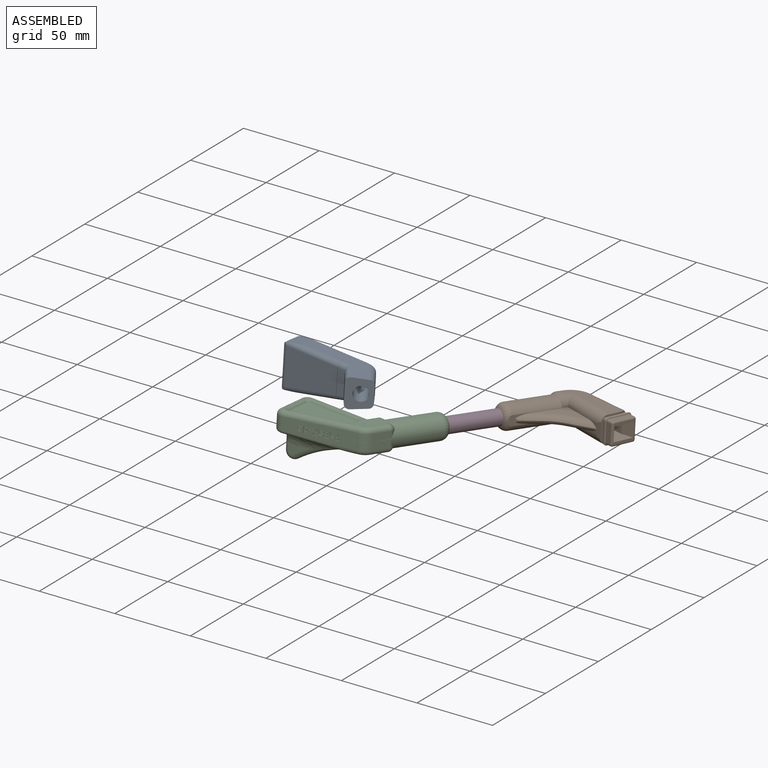
[diagram: assembled view]
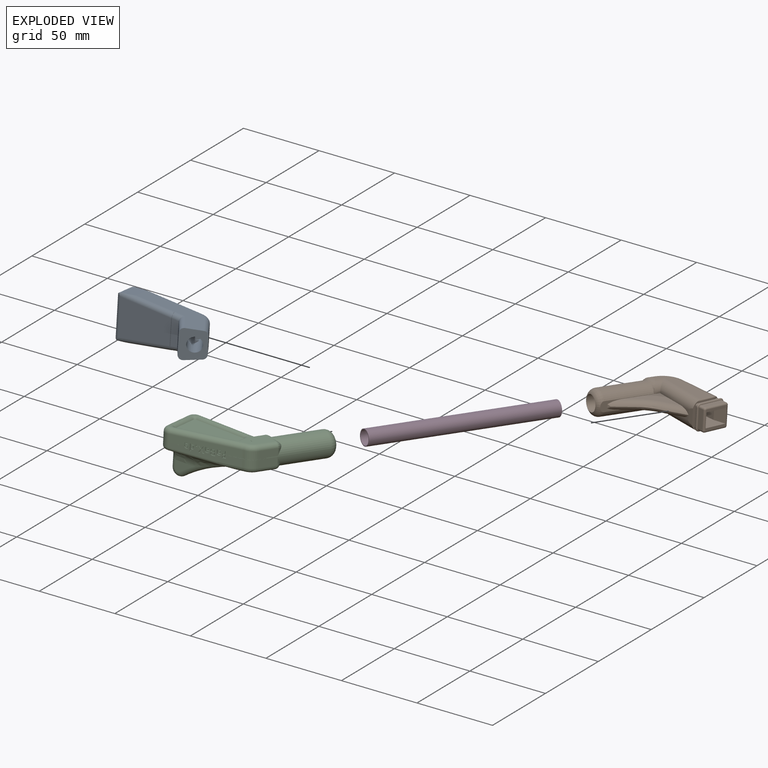
[diagram: exploded view]
GUIDED TOUR — MATED ASSEMBLY WITH SUBASSEMBLIES (Onshape document 0c5960724dca33e63848c3d0, AutoMate assembly 0c5960724dca33e63848c3d0_9888388324c6c3603228b065_faf86990bb4cd9a401d5e894_default)

This assembly has 10 component occurrences arranged in 4 top-level units: 2 individual components plus 2 subassemblies (S0, S1). The tour has two levels: first the top level, where each subassembly is treated as one rigid unit; then each subassembly is toured internally in its own section (nesting deeper than one subassembly level is flattened into its subassembly's section).

Components are labeled P0..P9 across the whole record; subassembly units are labeled S0..S1. A mate is a constraint between two units; its type names the relative motion it leaves free:
  FASTENED — locks the two components together rigidly (no relative motion),
  SLIDER — leaves translation along the listed axis free.
Axis/direction vectors are unit vectors and 'through' points are millimeter coordinates, both in the assembly's world frame.

TOP-LEVEL MATES (between units; each subassembly's internal mates are listed in its own section)
  1. FASTENED "Fest 2": P6 <-> S1, direction (0.438, 0.895, -0.078) through (-85.28, -285.02, -10.18) mm
  2. FASTENED "Fest 1": P4 <-> P6, direction (-0.438, -0.895, 0.078) through (-32.67, -177.57, -19.58) mm

TOP-LEVEL ASSEMBLY ORDER
  1. P6 — the base component [order heuristic]
  2. P4 — core [order heuristic]
  3. S1 — core [order heuristic]
  4. S0 [order verified]
Order-tag legend:
  [order verified] — this step's position reverses a verified removal order: the component was checked to insert without passing through the ones already placed.
  [order heuristic] — the first 3 components form the assembly's core: parts whose collision-free extraction could not be verified, listed in mate-graph order.

Of the 10 component occurrences, 1 carries the full construction recipe — the FeatureScript program that regenerates the part's solid from scratch; the rest are supplied as boundary geometry only. Each toured unit is shown spotlighted twice — assembled, then exploded with a leader line back to its socket (green = recipe-attached component, orange = geometry-only, blue = subassembly unit; the rest desaturated gray).
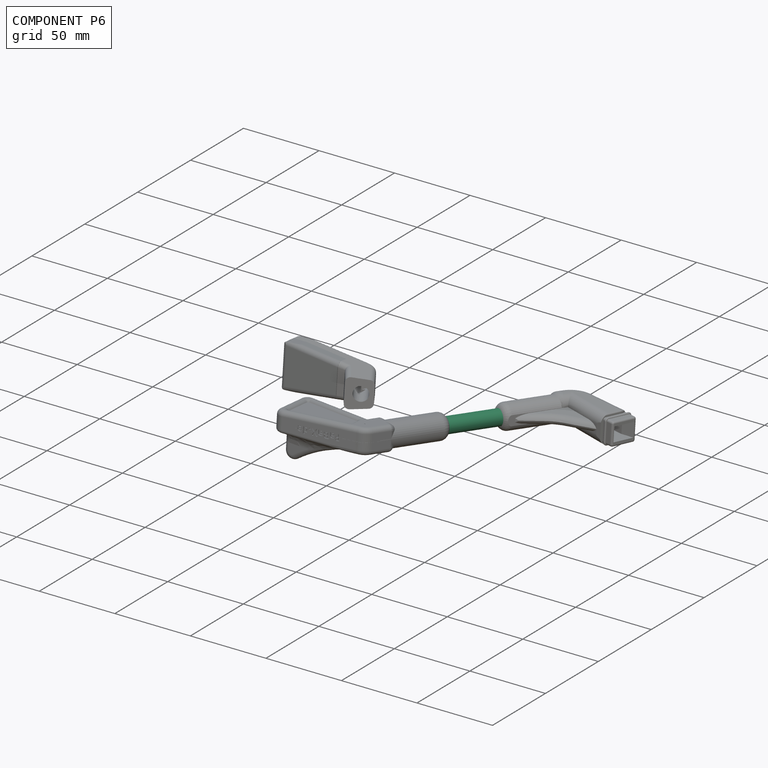
[diagram: component P6 — assembled]
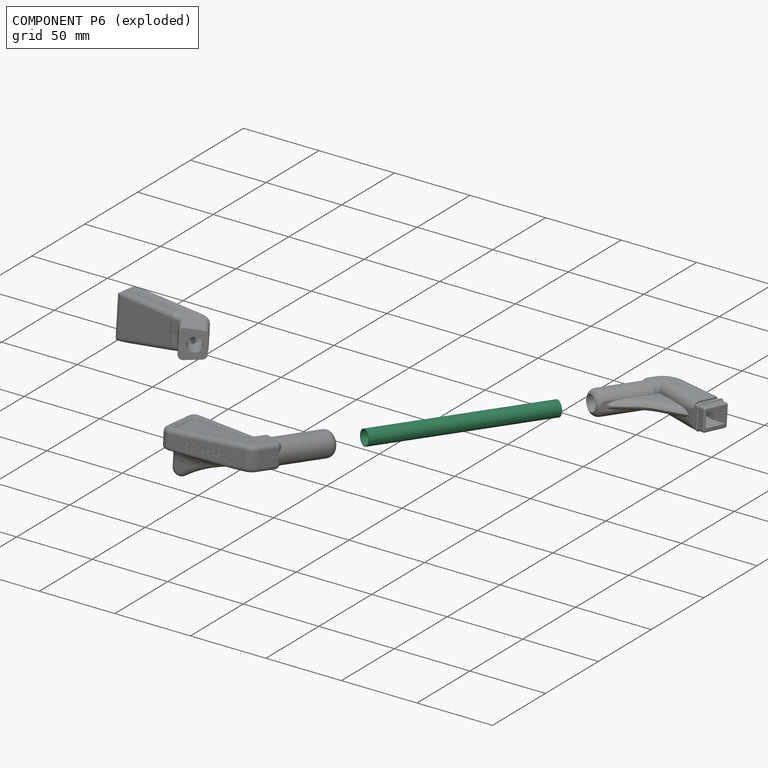
[diagram: component P6 — exploded]
COMPONENT P6 — recipe-attached (CADFS 00316540, mesh-verified: the recipe's output STEP matches this component's geometry to below the mesh-comparison resolution (tessellation chordal tolerance ~0.181 mm)).
Held by: FASTENED mate "Fest 2" to P5; FASTENED mate "Fest 1" to P4.
Construction recipe (FeatureScript — the CAD program that rebuilds this solid; sketch coordinates are in the units given by the * unit suffixes, e.g. mm):

FeatureScript 2599;
import(path : "onshape/std/geometry.fs", version : "2599.0");
import(path : "onshape/std/common.fs", version : "2599.0");
const mm = millimeter;
const VERTEX = EntityType.VERTEX;
const EDGE = EntityType.EDGE;
const FACE = EntityType.FACE;
const BODY = EntityType.BODY;
function v(x, y){return vector(x, y);}
function OD(order){return orderDisambiguation(order);}
function OSD(set){return originalSetDisambiguation(set);}
function TD(topology){return topologyDisambiguation(topology);}
function TDD(query){return trueDependencyDisambiguation(query);}
function sQuery(a, b, c) {return sketchEntityQuery(a, b, c);}

annotation { "Feature Type Name" : "Feature", "Feature Type Description" : "" }
export const myFeature = defineFeature(function(context is Context, id is Id, definition is map)
    precondition{}
    {
        {
            var Q0;
            Q0=qCreatedBy(makeId("Front.planeOp"),FACE);
            var sketch = newSketch(context, id + "F0", { "sketchPlane" : qUnion([Q0])});
            skCircle(sketch, "E0", {"center": v(0, 0) * mm, "radius": 5 * mm});
            skCircle(sketch, "E1", {"center": v(0, 0) * mm, "radius": 4.5 * mm});
            skSolve(sketch);
        }
        {
            var Q0;
            Q0=makeQuery(id+"F0.imprint","IMPRINT",FACE,{"disambiguationData":[TD([[makeQuery(id+"F0.imprint","IMPRINT",EDGE,{"derivedFrom":sQuery(id+"F0.wireOp",EDGE,"E0")}),1.0]])]});
            extrude(context, id + "F1", {"entities" : qUnion([Q0]), "flatOperationType" : FlatOperationType.REMOVE, "offsetDistance" : 25 * mm, "depth" : 120 * mm, "domain" : OperationDomain.MODEL});
        }
    });
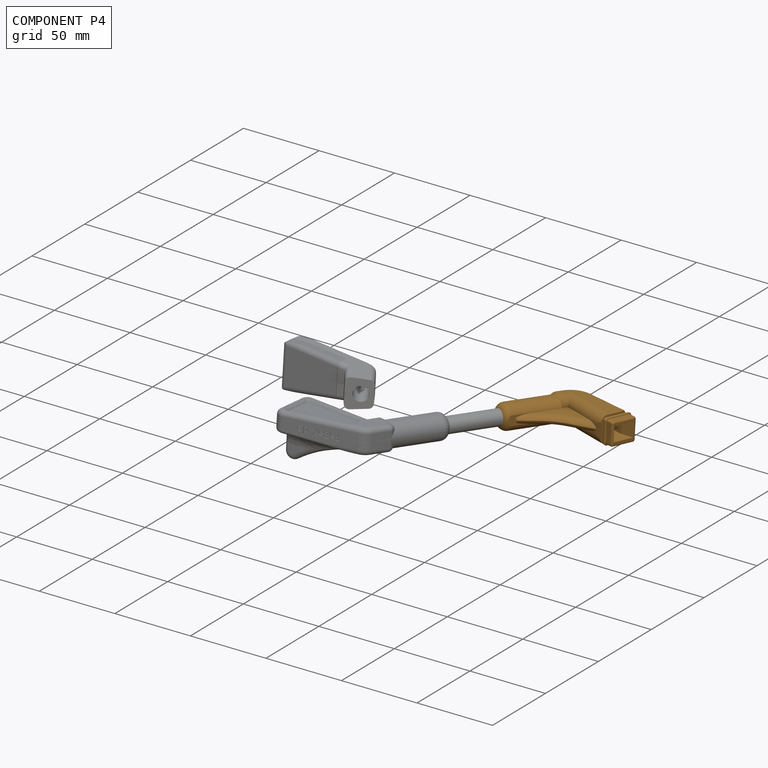
[diagram: component P4 — assembled]
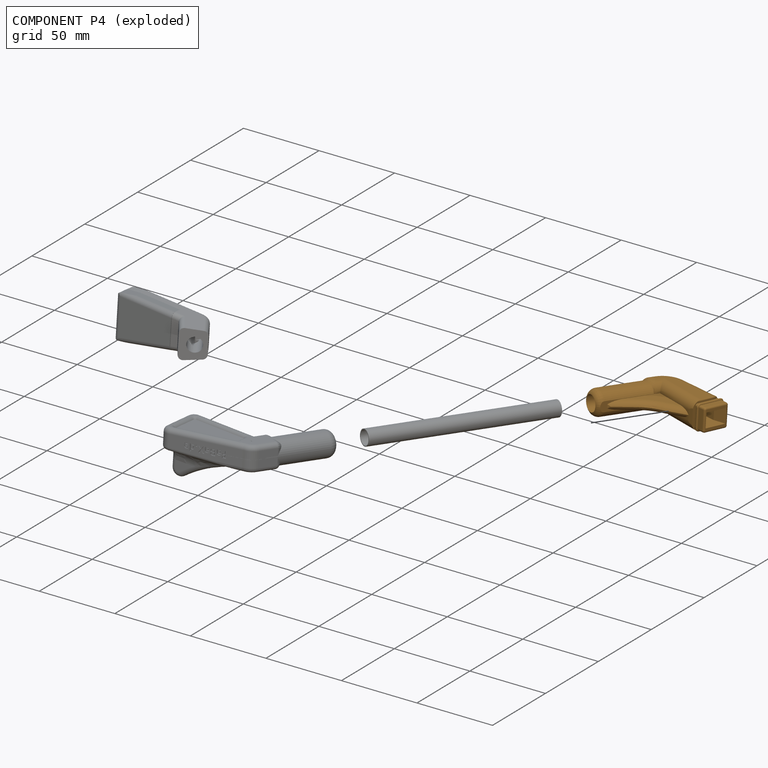
[diagram: component P4 — exploded]
COMPONENT P4 — geometry summary (no construction recipe available for this part):
  bounding box: 60.9 x 56.4 x 18.1 mm
  B-rep topology: 1 solid, 88 faces, 443 edges
  volume: 17948 mm^3 (29% of its bounding box)
  symmetry: mirror-symmetric across its z mid-plane
Held by: FASTENED mate "Fest 1" to P6.
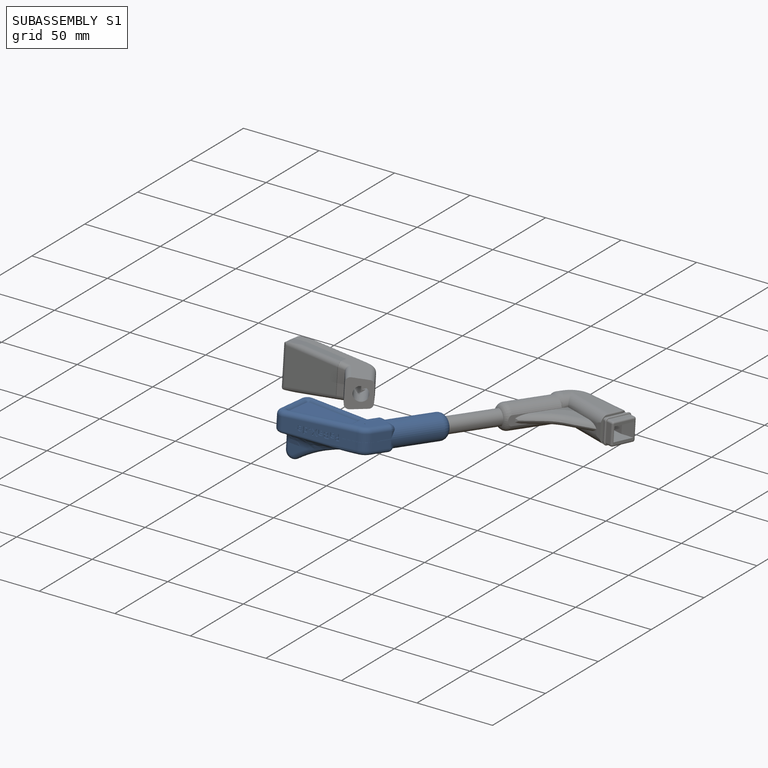
[diagram: subassembly S1 — assembled]
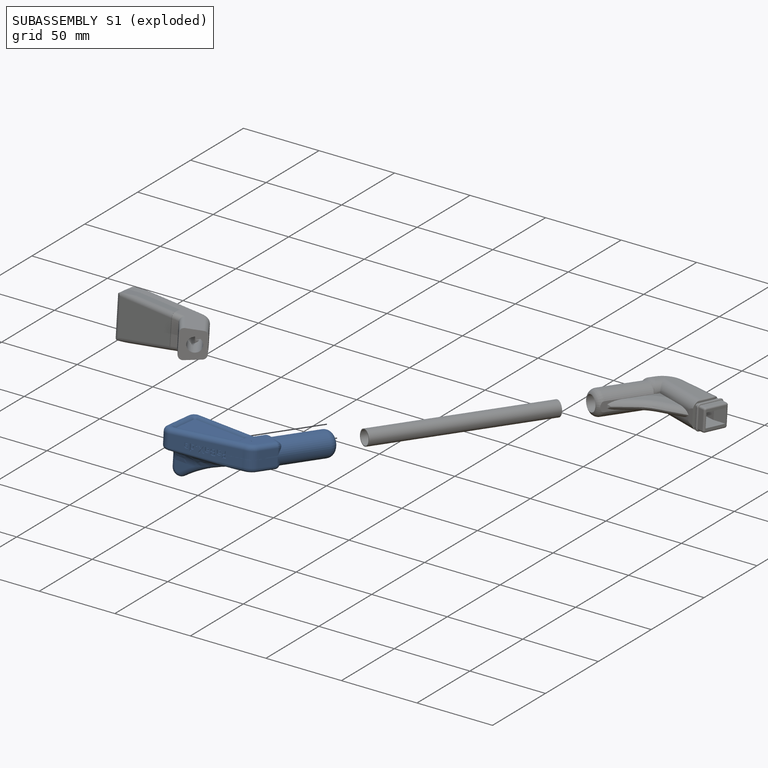
[diagram: subassembly S1 — exploded]
SUBASSEMBLY S1 — 2 components (P5, P9), of which 0 recipe-attached; toured below.
Held by: FASTENED mate "Fest 2" to P6.
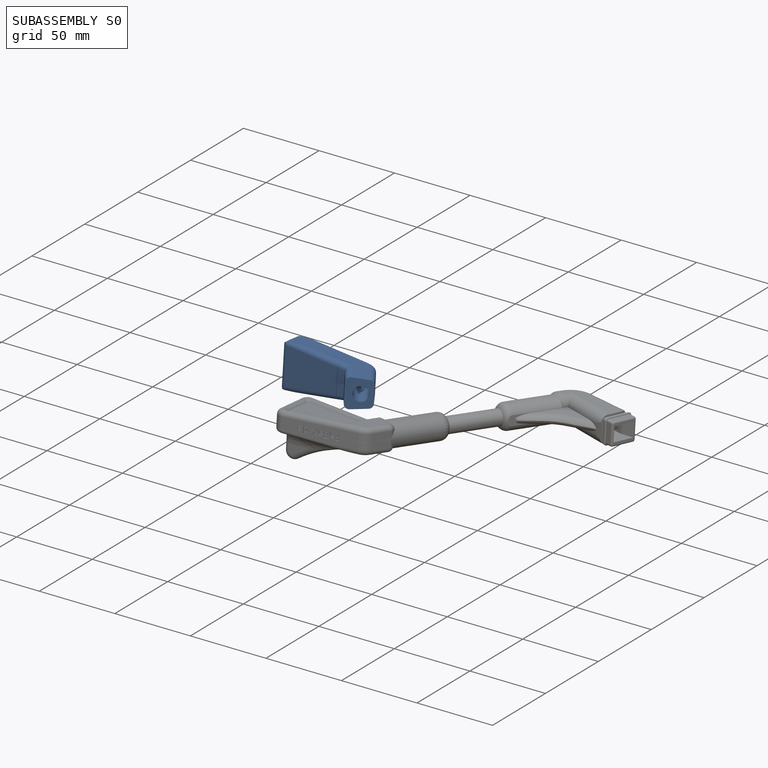
[diagram: subassembly S0 — assembled]
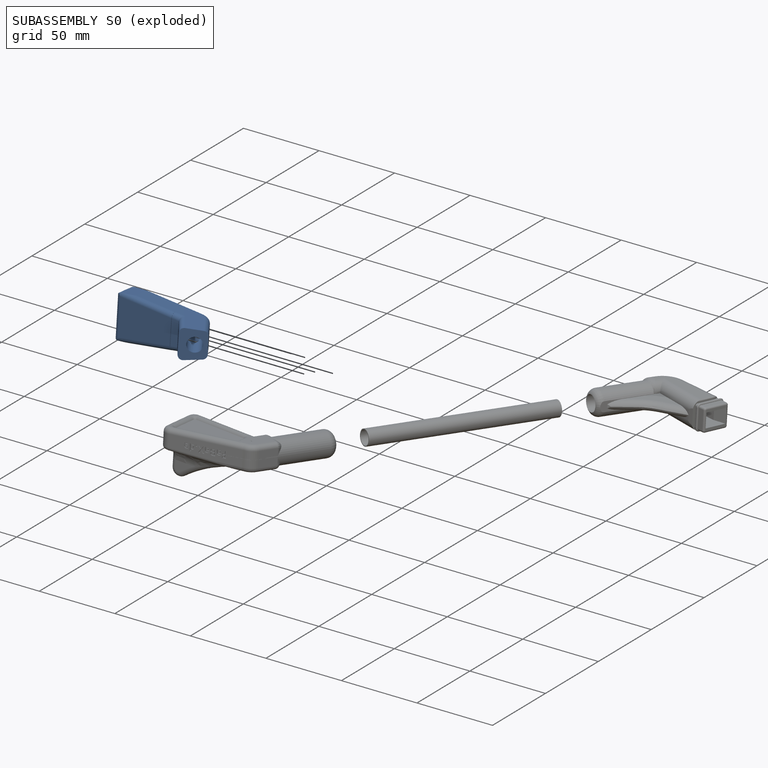
[diagram: subassembly S0 — exploded]
SUBASSEMBLY S0 — 6 components (P0, P1, P2, P3, P7, P8), of which 0 recipe-attached; toured below.
Held by: no mates (free).
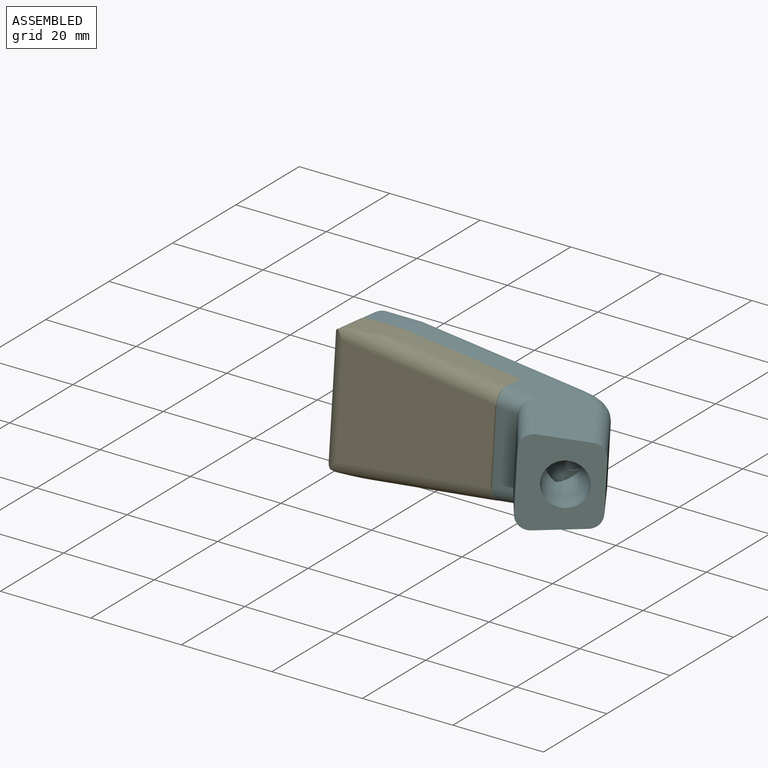
[diagram: subassembly S0 — assembled view]
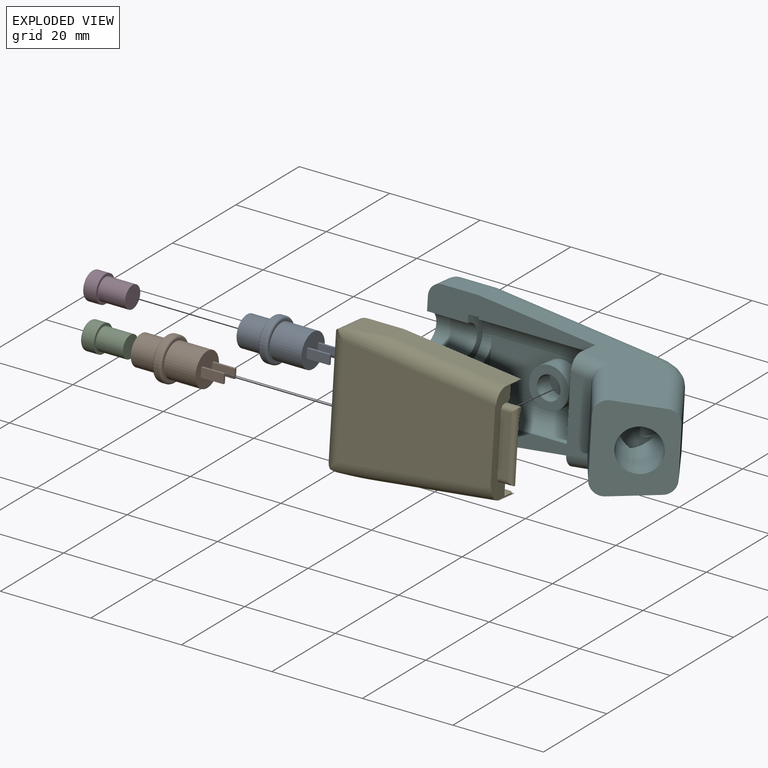
[diagram: subassembly S0 — exploded view]
SUBASSEMBLY S0 TOUR — 6 components, shown here in isolation at its own camera.

INTERNAL MATES
  1. FASTENED "Fest 3": P7 <-> P8, direction (0.000, 0.996, -0.092) through (-112.62, -284.09, 8.49) mm
  2. SLIDER "Gleiter 1": P1 <-> P2, axis (-1.000, 0.000, 0.000) through (-133.19, -283.38, 16.19) mm
  3. FASTENED "Fest 2": P1 <-> P7, direction (-1.000, 0.000, 0.000) through (-127.59, -283.38, 16.19) mm
  4. SLIDER "Gleiter 1": P0 <-> P3, axis (-1.000, 0.000, 0.000) through (-133.19, -282.50, 25.75) mm
  5. FASTENED "Fest 1": P0 <-> P7, direction (-1.000, 0.000, 0.000) through (-127.59, -282.50, 25.75) mm
  6. FASTENED "Fest 3": P7 <-> P8, direction (0.000, 0.996, -0.092) through (-112.62, -284.09, 8.49) mm
  7. FASTENED "Fest 1": P0 <-> P7, direction (-1.000, 0.000, 0.000) through (-127.59, -282.50, 25.75) mm
  8. FASTENED "Fest 2": P1 <-> P7, direction (-1.000, 0.000, 0.000) through (-127.59, -283.38, 16.19) mm
  9. SLIDER "Gleiter 1": P1 <-> P2, axis (-1.000, 0.000, 0.000) through (-133.19, -283.38, 16.19) mm
  10. SLIDER "Gleiter 1": P0 <-> P3, axis (-1.000, 0.000, 0.000) through (-133.19, -282.50, 25.75) mm

ASSEMBLY ORDER (within the subassembly)
  1. P7 — the base component [order heuristic]
  2. P0 [order heuristic]
  3. P1 [order heuristic]
  4. P8 [order heuristic]
  5. P2 [order heuristic]
  6. P3 [order heuristic]
Order-tag legend:
  [order heuristic] — this assembly is geometrically interlocked (no collision-free removal order exists), so components are listed in mate-graph order; insertion feasibility is not verified.
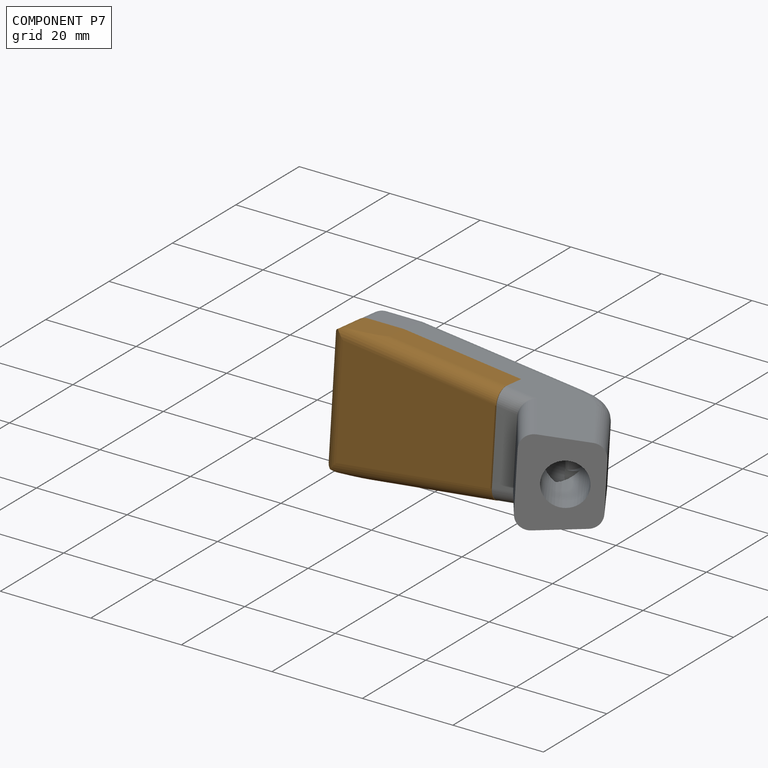
[diagram: component P7 — assembled]
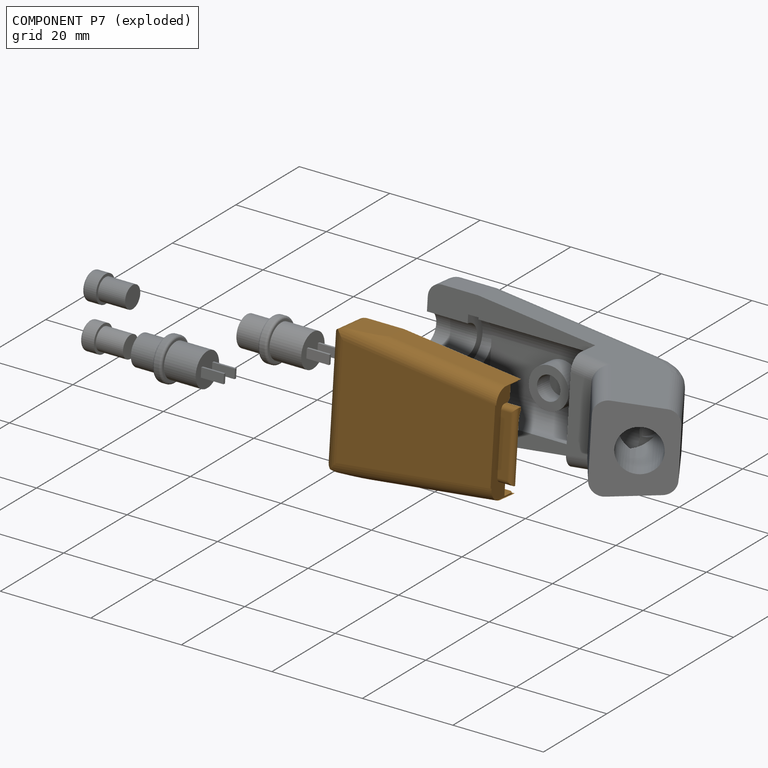
[diagram: component P7 — exploded]
COMPONENT P7 — geometry summary (no construction recipe available for this part):
  bounding box: 40.1 x 30.1 x 7.6 mm
  B-rep topology: 1 solid, 49 faces, 268 edges
  volume: 4540 mm^3 (49% of its bounding box)
Held by: FASTENED mate "Fest 3" to P8; FASTENED mate "Fest 2" to P1; FASTENED mate "Fest 1" to P0; FASTENED mate "Fest 3" to P8; FASTENED mate "Fest 1" to P0; FASTENED mate "Fest 2" to P1.
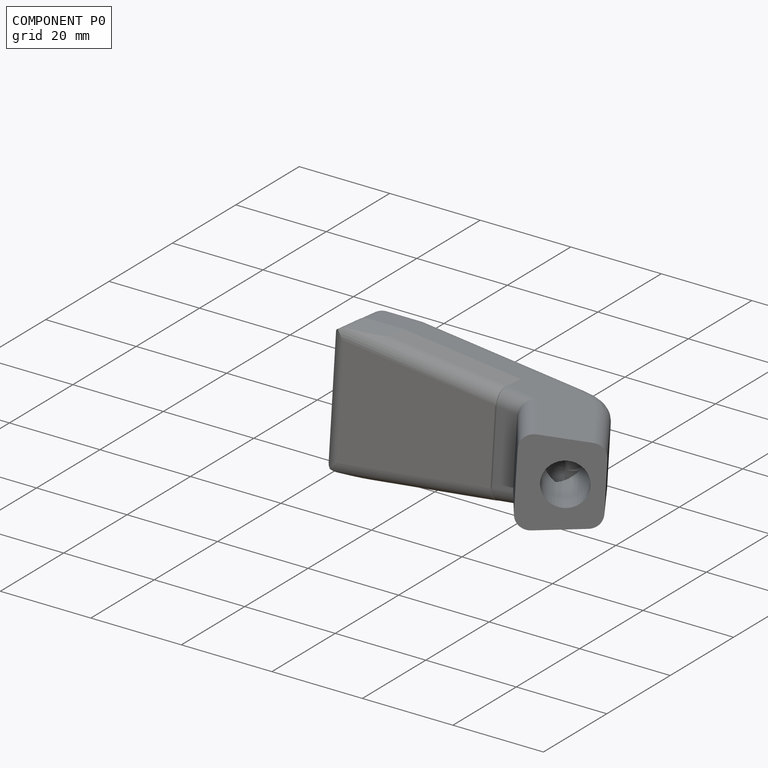
[diagram: component P0 — assembled]
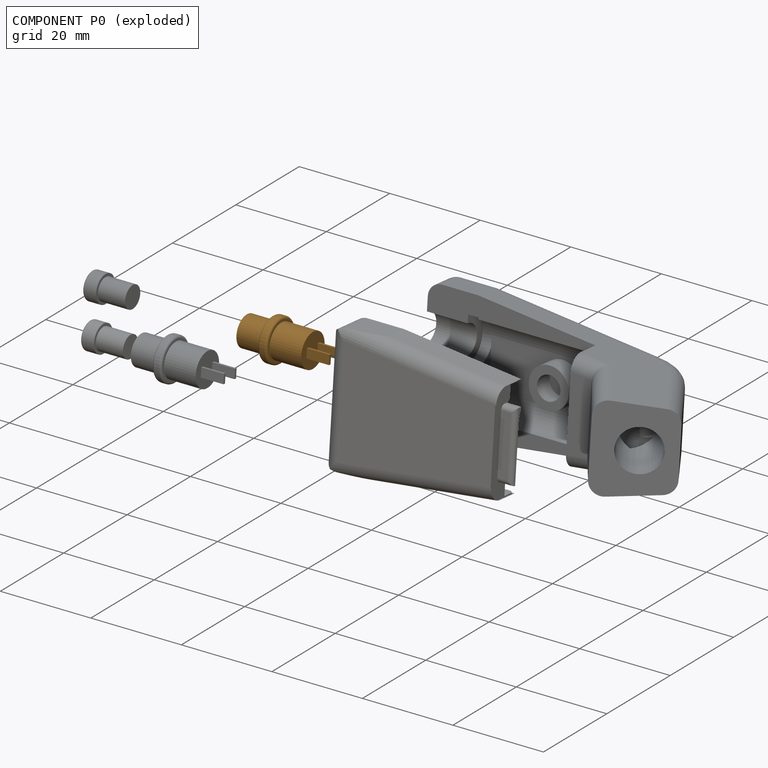
[diagram: component P0 — exploded]
COMPONENT P0 — geometry summary (no construction recipe available for this part):
  bounding box: 19.6 x 10.1 x 10.1 mm
  B-rep topology: 1 solid, 21 faces, 80 edges
  volume: 498 mm^3 (25% of its bounding box)
  symmetry: 2-fold rotationally symmetric about the y axis; mirror-symmetric across its x mid-plane, z mid-plane
Held by: SLIDER mate "Gleiter 1" to P3; FASTENED mate "Fest 1" to P7; FASTENED mate "Fest 1" to P7; SLIDER mate "Gleiter 1" to P3.
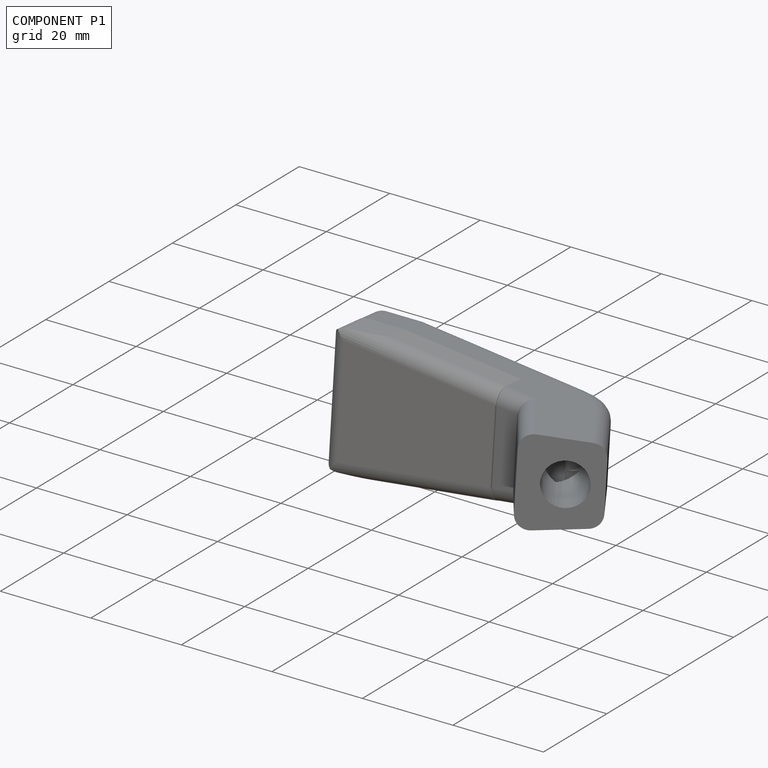
[diagram: component P1 — assembled]
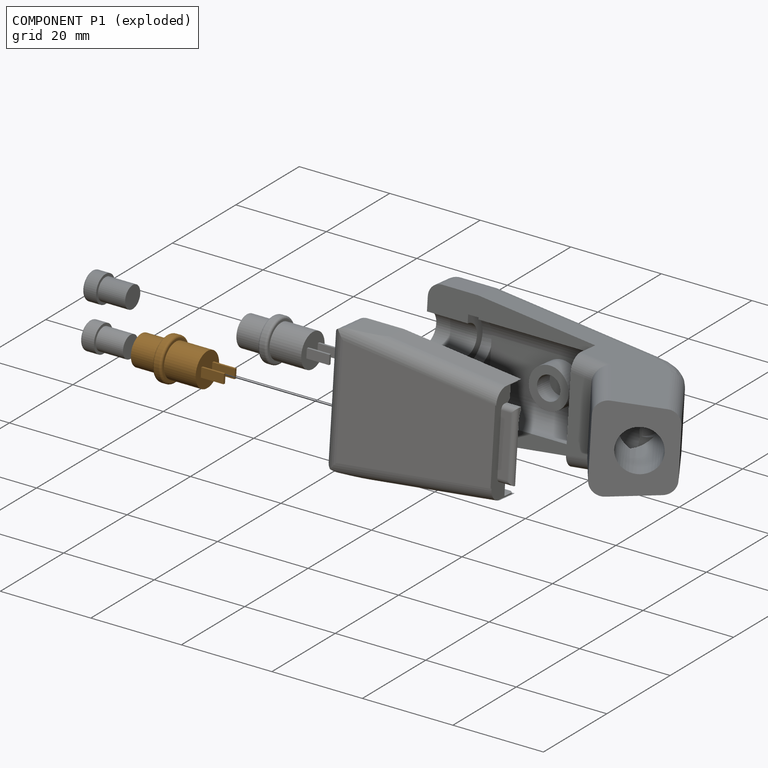
[diagram: component P1 — exploded]
COMPONENT P1 — geometry summary (no construction recipe available for this part):
  bounding box: 19.6 x 10.1 x 10.1 mm
  B-rep topology: 1 solid, 21 faces, 80 edges
  volume: 498 mm^3 (25% of its bounding box)
  symmetry: 2-fold rotationally symmetric about the y axis; mirror-symmetric across its x mid-plane, z mid-plane
Held by: SLIDER mate "Gleiter 1" to P2; FASTENED mate "Fest 2" to P7; FASTENED mate "Fest 2" to P7; SLIDER mate "Gleiter 1" to P2.
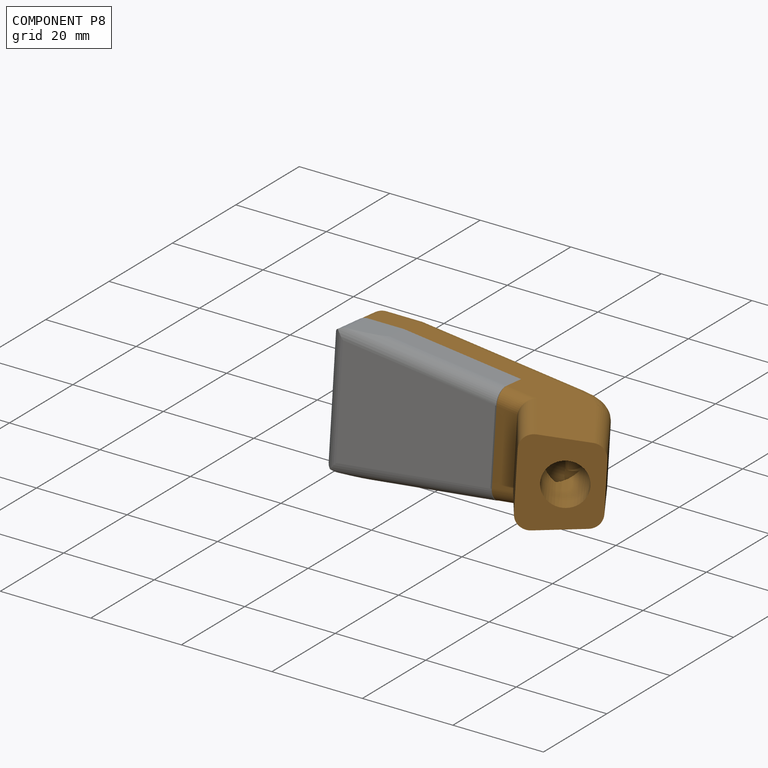
[diagram: component P8 — assembled]
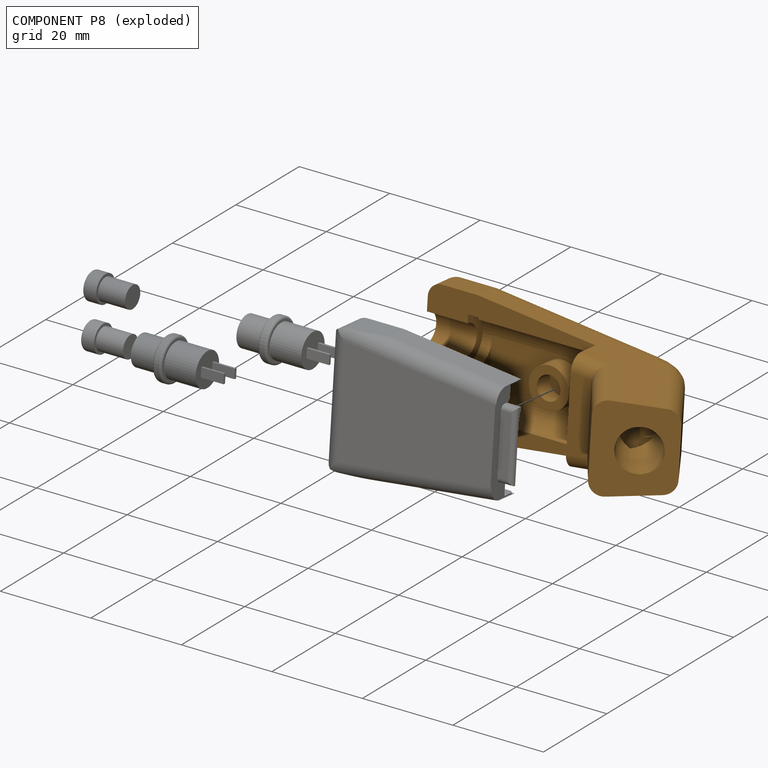
[diagram: component P8 — exploded]
COMPONENT P8 — geometry summary (no construction recipe available for this part):
  bounding box: 63.8 x 28.1 x 27.0 mm
  B-rep topology: 1 solid, 60 faces, 316 edges
  volume: 10294 mm^3 (21% of its bounding box)
Held by: FASTENED mate "Fest 3" to P7; FASTENED mate "Fest 3" to P7.
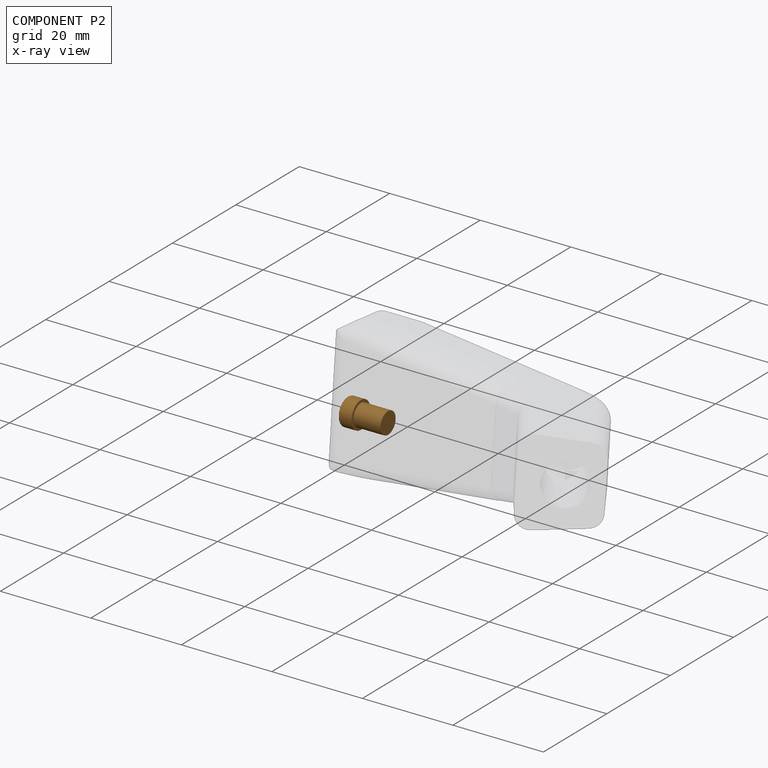
[diagram: component P2 — x-ray view]
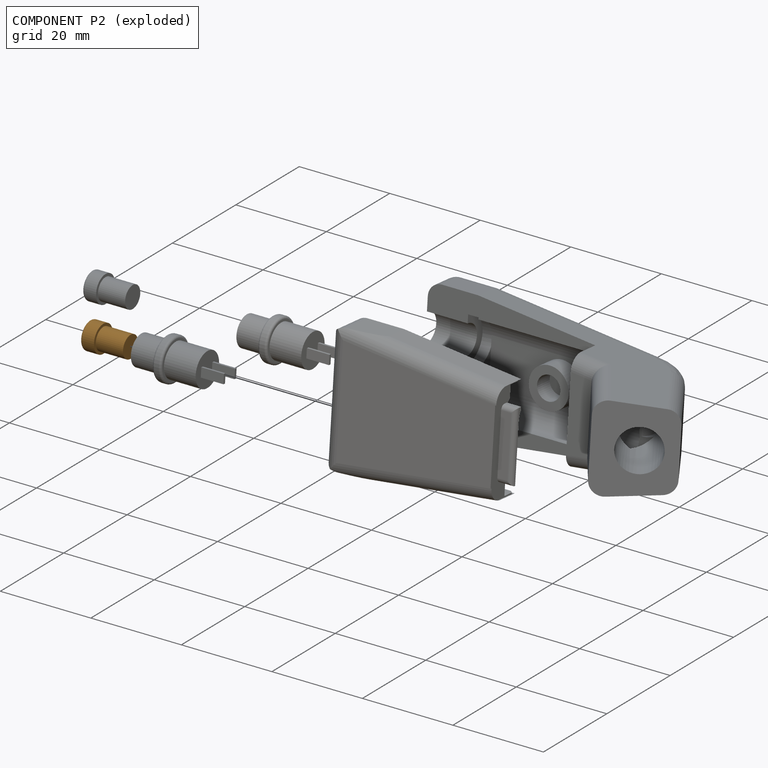
[diagram: component P2 — exploded]
COMPONENT P2 — geometry summary (no construction recipe available for this part):
  bounding box: 9.0 x 6.5 x 6.5 mm
  B-rep topology: 1 solid, 6 faces, 16 edges
  volume: 193 mm^3 (51% of its bounding box)
  symmetry: revolution-symmetric about the y axis through its bounding-box center; mirror-symmetric across its x mid-plane, z mid-plane
Held by: SLIDER mate "Gleiter 1" to P1; SLIDER mate "Gleiter 1" to P1.
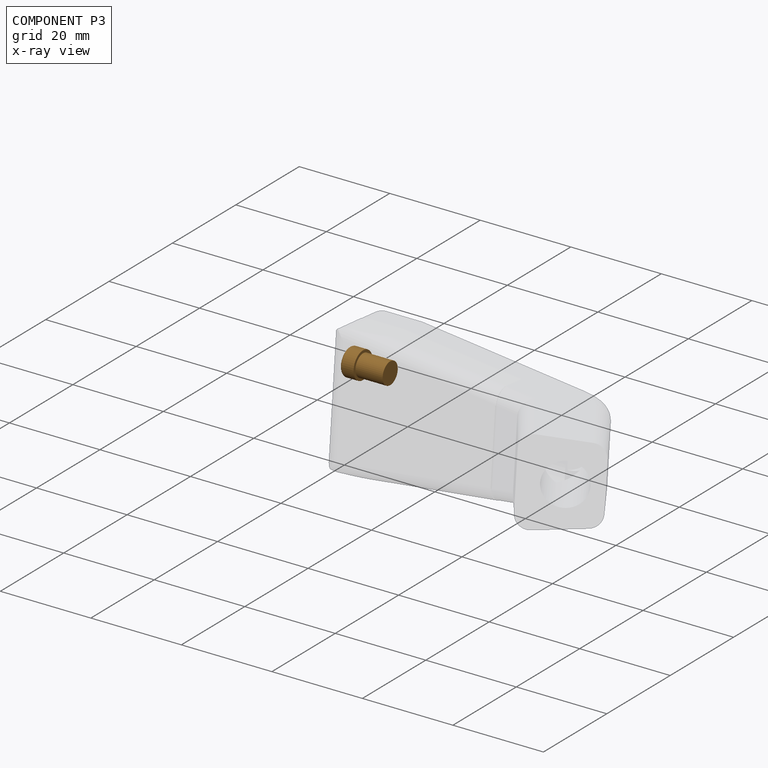
[diagram: component P3 — x-ray view]
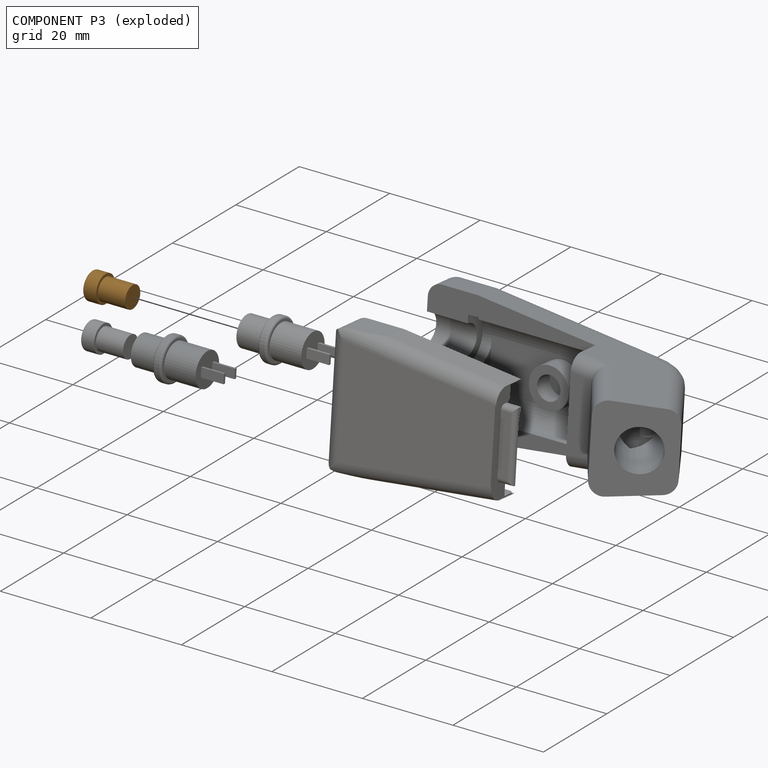
[diagram: component P3 — exploded]
COMPONENT P3 — geometry summary (no construction recipe available for this part):
  bounding box: 9.0 x 6.5 x 6.5 mm
  B-rep topology: 1 solid, 6 faces, 16 edges
  volume: 193 mm^3 (51% of its bounding box)
  symmetry: revolution-symmetric about the y axis through its bounding-box center; mirror-symmetric across its x mid-plane, z mid-plane
Held by: SLIDER mate "Gleiter 1" to P0; SLIDER mate "Gleiter 1" to P0.
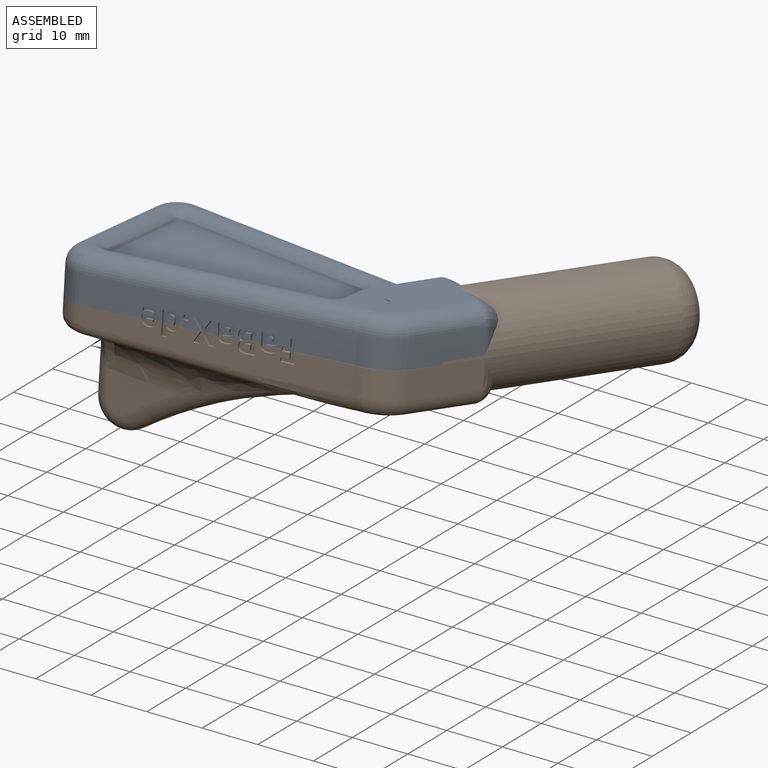
[diagram: subassembly S1 — assembled view]
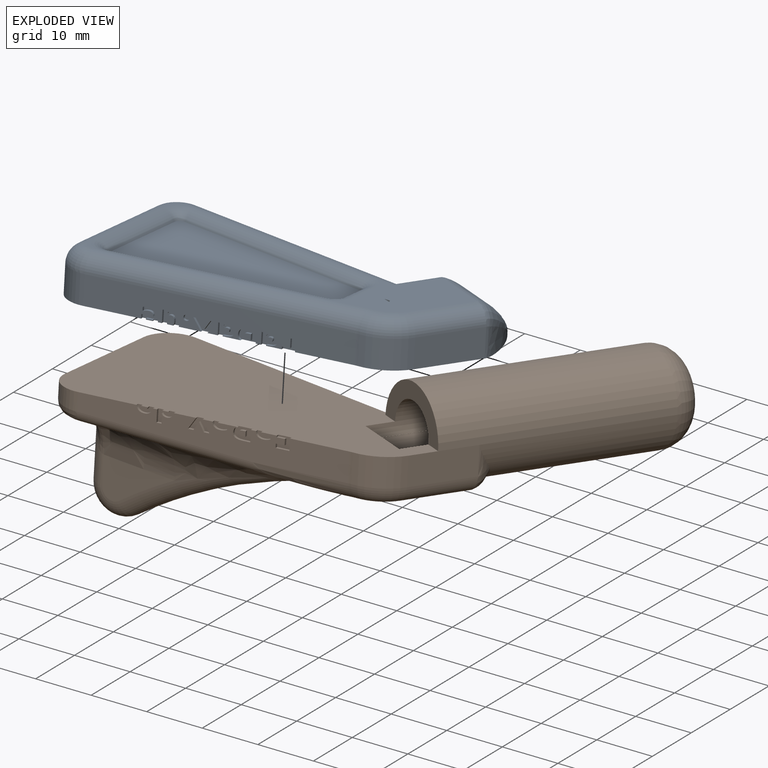
[diagram: subassembly S1 — exploded view]
SUBASSEMBLY S1 TOUR — 2 components, shown here in isolation at its own camera.

INTERNAL MATES
  1. FASTENED "Fest 1": P9 <-> P5, direction (0.000, 0.087, 0.996) through (-135.28, -284.97, -10.18) mm
  2. FASTENED "Fest 1": P9 <-> P5, direction (0.000, 0.087, 0.996) through (-135.28, -284.97, -10.18) mm

ASSEMBLY ORDER (within the subassembly)
  1. P5 — the base component [order heuristic]
  2. P9 [order heuristic]
Order-tag legend:
  [order heuristic] — this assembly is geometrically interlocked (no collision-free removal order exists), so components are listed in mate-graph order; insertion feasibility is not verified.
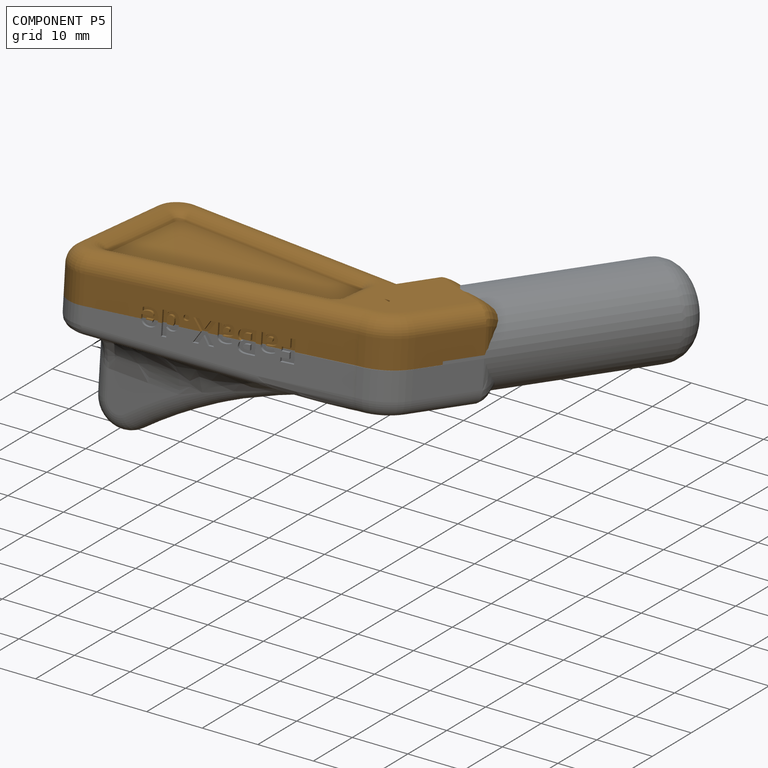
[diagram: component P5 — assembled]
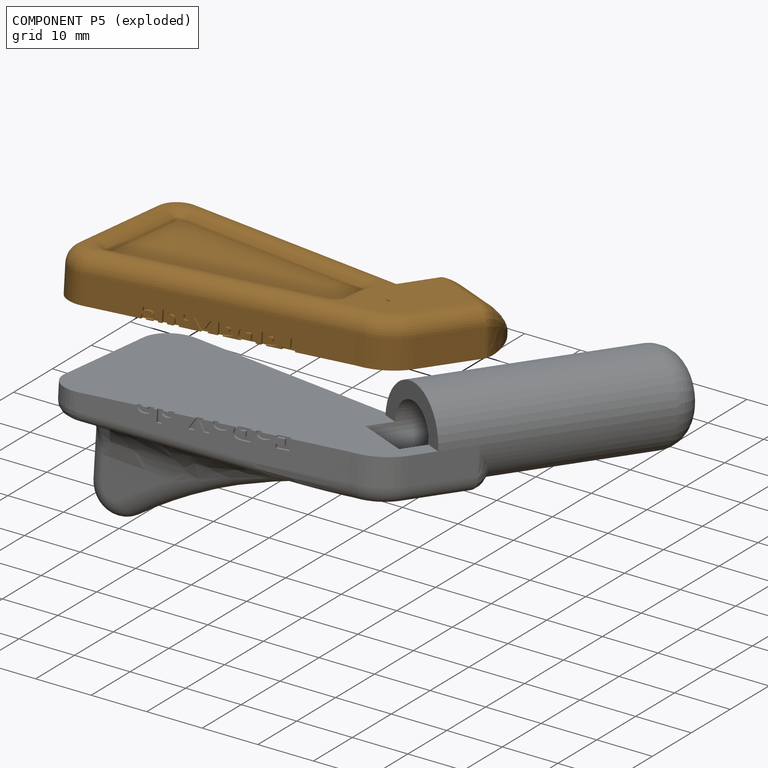
[diagram: component P5 — exploded]
COMPONENT P5 — geometry summary (no construction recipe available for this part):
  bounding box: 66.0 x 36.7 x 8.3 mm
  B-rep topology: 1 solid, 157 faces, 878 edges
  volume: 10321 mm^3 (52% of its bounding box)
Held by: FASTENED mate "Fest 1" to P9; FASTENED mate "Fest 1" to P9.
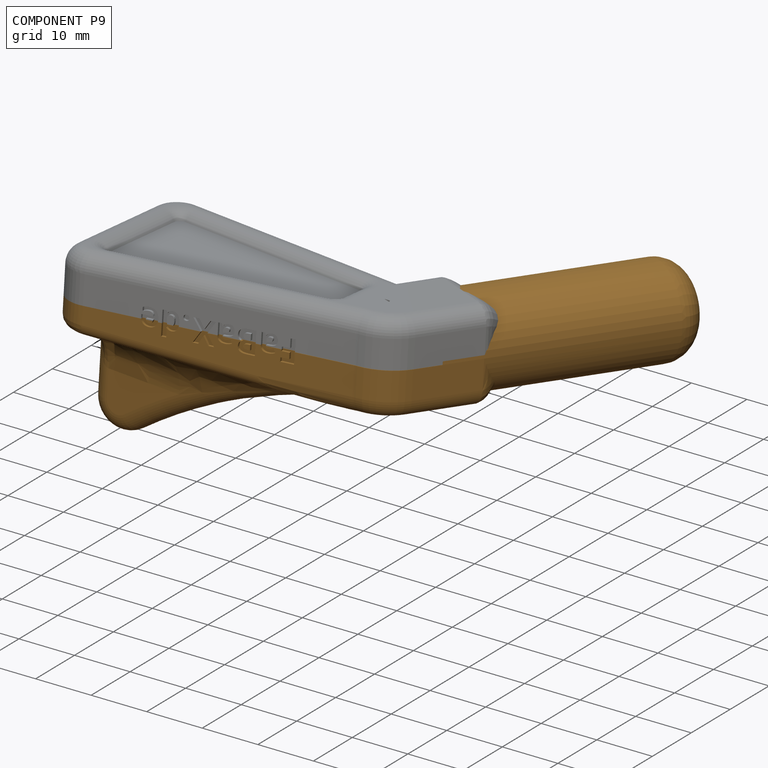
[diagram: component P9 — assembled]
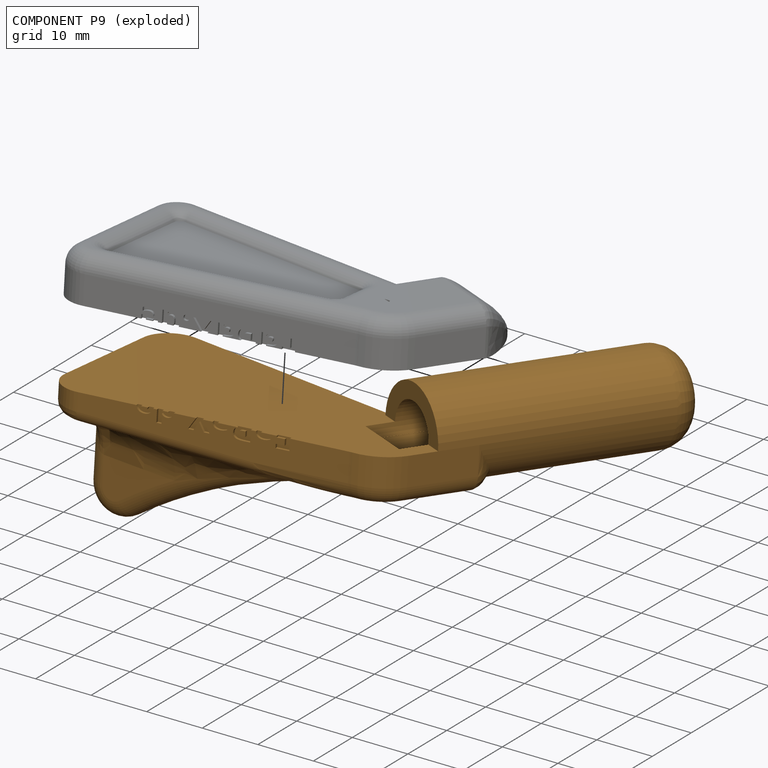
[diagram: component P9 — exploded]
COMPONENT P9 — geometry summary (no construction recipe available for this part):
  bounding box: 78.1 x 62.5 x 32.0 mm
  B-rep topology: 1 solid, 139 faces, 756 edges
  volume: 16401 mm^3 (11% of its bounding box)
Held by: FASTENED mate "Fest 1" to P5; FASTENED mate "Fest 1" to P5.
PROVENANCE & LICENSES
Assembly (occurrences, transforms, mates, per-part STEP geometry): AutoMate dataset, Zenodo record 7776208, CC0.
Construction recipes: CADFS (HuggingFace VladPyatov/CADFS, CC-BY-4.0, layered over the ABC dataset), FeatureScript reconstruction programs keyed by ABC model id.
Join: ABC meta listings map ABC model id -> Onshape documentId; within a shared document, parts are matched by geometric signature (bounding-box dims + volume at 0.1% relative tolerance, exact B-rep face/solid counts).
Verification: 1 of this assembly's 10 components carries a recipe attachment, and every attachment is mesh-verified: the CADFS STEP and the AutoMate member STEP were compared as meshes in their shared local frame (symmetric sampled-point-to-mesh distance); worst across the 1 attachment: below the mesh-comparison resolution (tessellation chordal tolerance ~0.181 mm) on a 121 mm part.
Renders: orthographic iso camera (az 35 / el 25); the floor grid conveys scale (grid pitch printed in each image; no ruler). In the exploded view each component is displaced by its stored offset vector: the offsets alone carry the explosion direction (mate normal/axis signs are not orientation cues and do not encode it), and separation distances are assigned per mate-chain, not proportionally to assembly-order depth.
